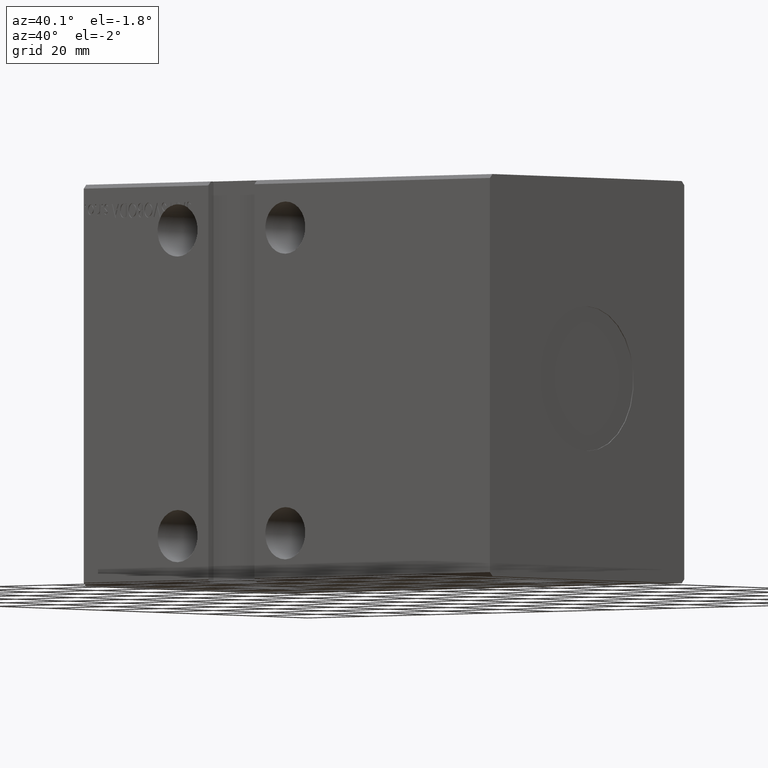
[diagram: clean part render]
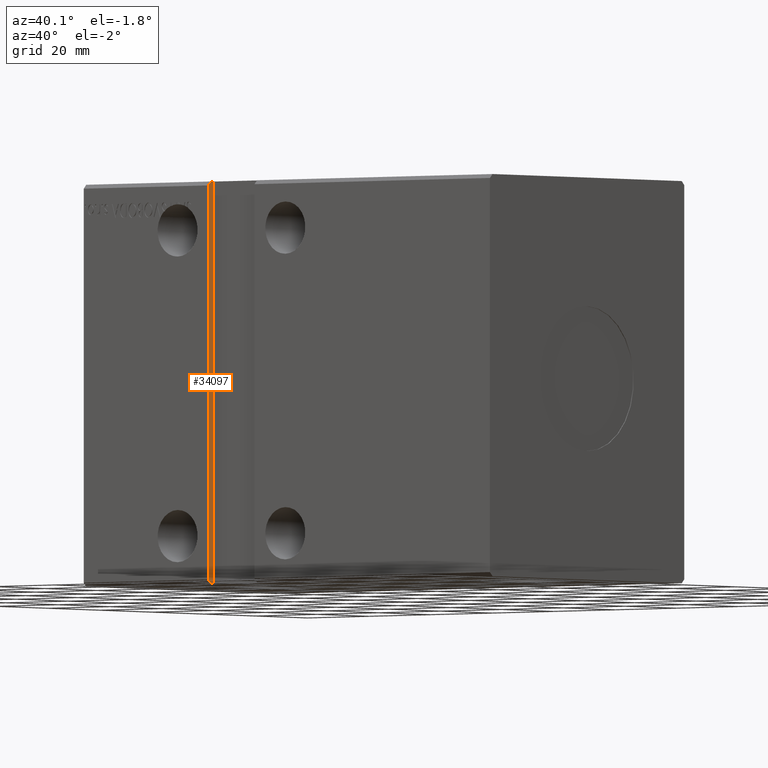
[diagram: same view with one face highlighted and labeled with its STEP entity id]
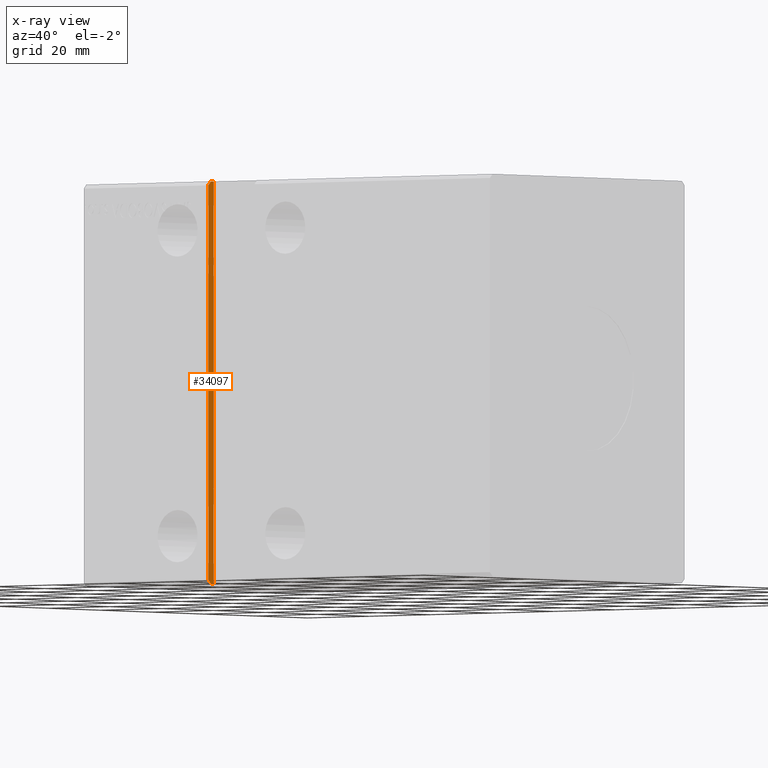
[diagram: x-ray of the same camera — body ghosted, the highlighted face saturated]
A machine part, auxiliary view. The second image highlights one B-rep face of the part: STEP entity #34097.
The next image is the same camera in x-ray: the body ghosted, the highlighted face saturated — about 0% of this face is hidden behind the body in this view.
In plain terms, the highlighted planar face has unit normal (-1, 0, -0).
Its self-contained STEP definition (entity closure, byte-faithful):
#39 = DIRECTION ( 'NONE',  ( -2.081668171172169006E-16, 0.000000000000000000, 1.000000000000000000 ) ) ;
#345 = CARTESIAN_POINT ( 'NONE',  ( 40.50000000000002132, -37.50000000000000711, -49.00000000000000711 ) ) ;
#447 = FACE_OUTER_BOUND ( 'NONE', #20362, .T. ) ;
#1393 = EDGE_CURVE ( 'NONE', #3790, #15795, #29505, .T. ) ;
#1441 = AXIS2_PLACEMENT_3D ( 'NONE', #25113, #15368, #39 ) ;
#2302 = CARTESIAN_POINT ( 'NONE',  ( 40.50000000000000711, -36.50000000000002132, 49.99999999999997868 ) ) ;
#2487 = LINE ( 'NONE', #15108, #23027 ) ;
#2744 = PLANE ( 'NONE',  #1441 ) ;
#3790 = VERTEX_POINT ( 'NONE', #31363 ) ;
#4162 = ORIENTED_EDGE ( 'NONE', *, *, #18466, .T. ) ;
#4203 = ORIENTED_EDGE ( 'NONE', *, *, #1393, .F. ) ;
#4833 = CARTESIAN_POINT ( 'NONE',  ( 40.50000000000002132, -35.50000000000001421, -50.00000000000000000 ) ) ;
#7133 = CARTESIAN_POINT ( 'NONE',  ( 40.50000000000000711, -37.50000000000001421, -49.00000000000000000 ) ) ;
#7296 = CARTESIAN_POINT ( 'NONE',  ( 40.50000000000000000, -36.50000000000001421, 49.99999999999998579 ) ) ;
#7322 = LINE ( 'NONE', #4833, #33168 ) ;
#8200 = EDGE_CURVE ( 'NONE', #40616, #23067, #7322, .T. ) ;
#8611 = DIRECTION ( 'NONE',  ( 2.081668171172169006E-16, 0.000000000000000000, -1.000000000000000000 ) ) ;
#13389 = EDGE_CURVE ( 'NONE', #23982, #40616, #18158, .T. ) ;
#13519 = VERTEX_POINT ( 'NONE', #7133 ) ;
#13525 = ORIENTED_EDGE ( 'NONE', *, *, #8200, .F. ) ;
#15108 = CARTESIAN_POINT ( 'NONE',  ( 40.50000000000000000, -37.50000000000001421, 49.99999999999998579 ) ) ;
#15368 = DIRECTION ( 'NONE',  ( -1.000000000000000000, 1.146386871659069130E-32, -2.081668171172169006E-16 ) ) ;
#15795 = VERTEX_POINT ( 'NONE', #7296 ) ;
#18158 = LINE ( 'NONE', #27493, #40349 ) ;
#18466 = EDGE_CURVE ( 'NONE', #3790, #13519, #2487, .T. ) ;
#18632 = CARTESIAN_POINT ( 'NONE',  ( 40.50000000000000000, -35.50000000000001421, 49.99999999999998579 ) ) ;
#19070 = VECTOR ( 'NONE', #31254, 1000.000000000000114 ) ;
#19584 = EDGE_CURVE ( 'NONE', #23067, #13519, #34965, .T. ) ;
#20362 = EDGE_LOOP ( 'NONE', ( #4162, #40136, #13525, #29076, #32806, #4203 ) ) ;
#21218 = CARTESIAN_POINT ( 'NONE',  ( 40.50000000000002132, -36.50000000000000711, -50.00000000000000000 ) ) ;
#23027 = VECTOR ( 'NONE', #30467, 1000.000000000000000 ) ;
#23067 = VERTEX_POINT ( 'NONE', #21218 ) ;
#23921 = LINE ( 'NONE', #30565, #27207 ) ;
#23982 = VERTEX_POINT ( 'NONE', #18632 ) ;
#25113 = CARTESIAN_POINT ( 'NONE',  ( 40.50000000000000000, -35.50000000000001421, 49.99999999999998579 ) ) ;
#25919 = CARTESIAN_POINT ( 'NONE',  ( 40.50000000000002132, -35.50000000000001421, -50.00000000000000000 ) ) ;
#27207 = VECTOR ( 'NONE', #39693, 1000.000000000000000 ) ;
#27493 = CARTESIAN_POINT ( 'NONE',  ( 40.50000000000000000, -35.50000000000001421, 49.99999999999998579 ) ) ;
#29076 = ORIENTED_EDGE ( 'NONE', *, *, #13389, .F. ) ;
#29505 = LINE ( 'NONE', #2302, #40810 ) ;
#30467 = DIRECTION ( 'NONE',  ( 2.081668171172169006E-16, 0.000000000000000000, -1.000000000000000000 ) ) ;
#30565 = CARTESIAN_POINT ( 'NONE',  ( 40.50000000000000000, -35.50000000000001421, 49.99999999999998579 ) ) ;
#31254 = DIRECTION ( 'NONE',  ( -1.471961680016034242E-16, -0.7071067811865500152, 0.7071067811865451302 ) ) ;
#31363 = CARTESIAN_POINT ( 'NONE',  ( 40.50000000000000000, -37.50000000000001421, 48.99999999999998579 ) ) ;
#32634 = DIRECTION ( 'NONE',  ( -0.000000000000000000, -1.000000000000000000, -5.507058653894625237E-17 ) ) ;
#32806 = ORIENTED_EDGE ( 'NONE', *, *, #32864, .T. ) ;
#32864 = EDGE_CURVE ( 'NONE', #23982, #15795, #23921, .T. ) ;
#33168 = VECTOR ( 'NONE', #32634, 1000.000000000000000 ) ;
#33581 = DIRECTION ( 'NONE',  ( -1.471961680016039666E-16, 0.7071067811865474617, 0.7071067811865474617 ) ) ;
#34097 = ADVANCED_FACE ( 'NONE', ( #447 ), #2744, .F. ) ;
#34965 = LINE ( 'NONE', #345, #19070 ) ;
#39693 = DIRECTION ( 'NONE',  ( -0.000000000000000000, -1.000000000000000000, -5.507058653894625237E-17 ) ) ;
#40136 = ORIENTED_EDGE ( 'NONE', *, *, #19584, .F. ) ;
#40349 = VECTOR ( 'NONE', #8611, 1000.000000000000000 ) ;
#40616 = VERTEX_POINT ( 'NONE', #25919 ) ;
#40810 = VECTOR ( 'NONE', #33581, 1000.000000000000114 ) ;